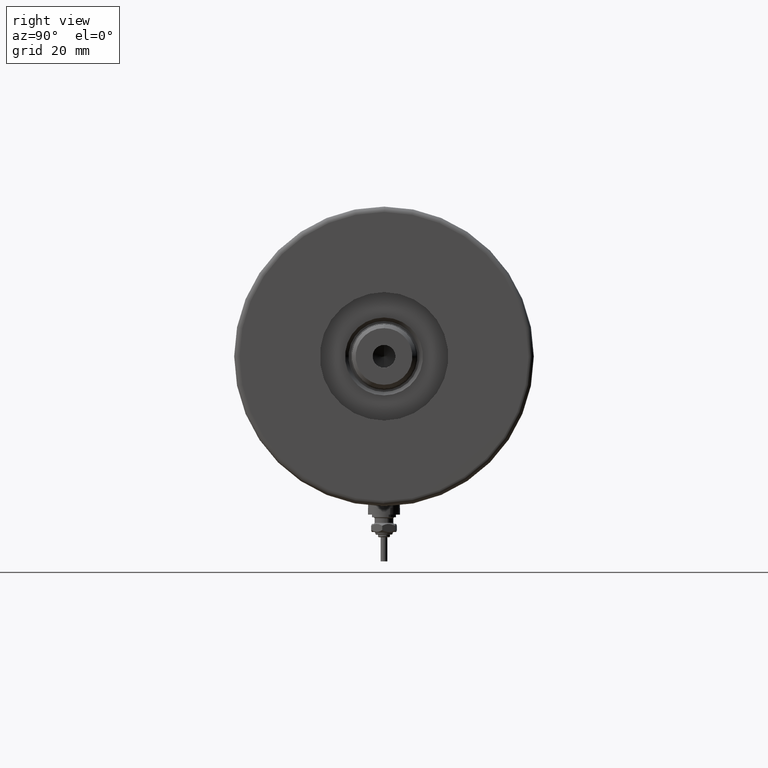
[diagram: clean part render]
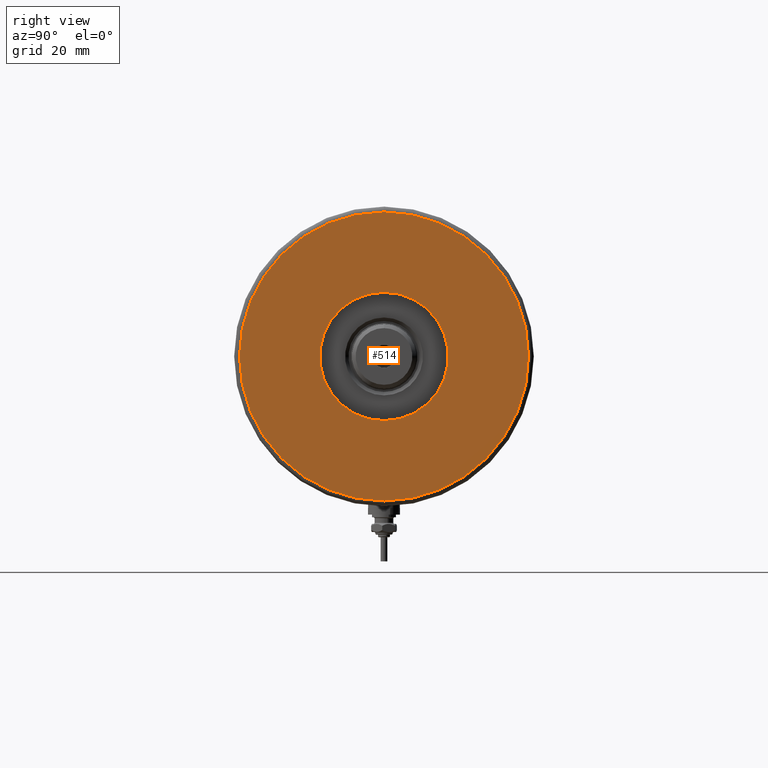
[diagram: same view with one face highlighted and labeled with its STEP entity id]
A machine part, right view. The second image highlights one B-rep face of the part: STEP entity #514.
In plain terms, the highlighted planar face has unit normal (1, 0, -0).
Its self-contained STEP definition (entity closure, byte-faithful):
#210 = DIRECTION ( 'NONE',  ( 1.000000000000000000, 0.000000000000000000, 0.000000000000000000 ) ) ;
#514 = ADVANCED_FACE ( 'NONE', ( #4796, #1959 ), #5839, .T. ) ;
#702 = CARTESIAN_POINT ( 'NONE',  ( 0.000000000000000000, 0.000000000000000000, 32.00000000000000000 ) ) ;
#878 = CARTESIAN_POINT ( 'NONE',  ( 24.00000000000000355, 0.000000000000000000, 32.00000000000000000 ) ) ;
#989 = ORIENTED_EDGE ( 'NONE', *, *, #6133, .F. ) ;
#1041 = CARTESIAN_POINT ( 'NONE',  ( 0.000000000000000000, 0.000000000000000000, 32.00000000000000000 ) ) ;
#1062 = VERTEX_POINT ( 'NONE', #5590 ) ;
#1075 = ORIENTED_EDGE ( 'NONE', *, *, #4115, .T. ) ;
#1265 = DIRECTION ( 'NONE',  ( 0.000000000000000000, 0.000000000000000000, 1.000000000000000000 ) ) ;
#1461 = EDGE_LOOP ( 'NONE', ( #5316, #1075 ) ) ;
#1482 = DIRECTION ( 'NONE',  ( 0.000000000000000000, 0.000000000000000000, 1.000000000000000000 ) ) ;
#1726 = AXIS2_PLACEMENT_3D ( 'NONE', #1752, #1265, #3202 ) ;
#1752 = CARTESIAN_POINT ( 'NONE',  ( 0.000000000000000000, 0.000000000000000000, 32.00000000000000000 ) ) ;
#1959 = FACE_BOUND ( 'NONE', #3378, .T. ) ;
#2111 = CIRCLE ( 'NONE', #1726, 54.00000000000000000 ) ;
#2192 = CIRCLE ( 'NONE', #4143, 54.00000000000000000 ) ;
#2421 = CARTESIAN_POINT ( 'NONE',  ( 0.000000000000000000, 0.000000000000000000, 32.00000000000000000 ) ) ;
#2539 = DIRECTION ( 'NONE',  ( 0.000000000000000000, 0.000000000000000000, 1.000000000000000000 ) ) ;
#2653 = DIRECTION ( 'NONE',  ( 1.000000000000000000, 0.000000000000000000, 0.000000000000000000 ) ) ;
#2670 = EDGE_CURVE ( 'NONE', #5204, #4134, #4446, .T. ) ;
#3191 = AXIS2_PLACEMENT_3D ( 'NONE', #1041, #1482, #5377 ) ;
#3202 = DIRECTION ( 'NONE',  ( 1.000000000000000000, 0.000000000000000000, 0.000000000000000000 ) ) ;
#3378 = EDGE_LOOP ( 'NONE', ( #4859, #989 ) ) ;
#3538 = DIRECTION ( 'NONE',  ( 0.000000000000000000, 0.000000000000000000, 1.000000000000000000 ) ) ;
#3581 = CARTESIAN_POINT ( 'NONE',  ( 0.000000000000000000, 0.000000000000000000, 32.00000000000000000 ) ) ;
#3624 = AXIS2_PLACEMENT_3D ( 'NONE', #2421, #6300, #210 ) ;
#4115 = EDGE_CURVE ( 'NONE', #4172, #1062, #2192, .T. ) ;
#4134 = VERTEX_POINT ( 'NONE', #5898 ) ;
#4143 = AXIS2_PLACEMENT_3D ( 'NONE', #702, #3538, #2653 ) ;
#4172 = VERTEX_POINT ( 'NONE', #5596 ) ;
#4446 = CIRCLE ( 'NONE', #3624, 24.00000000000000355 ) ;
#4796 = FACE_OUTER_BOUND ( 'NONE', #1461, .T. ) ;
#4859 = ORIENTED_EDGE ( 'NONE', *, *, #2670, .F. ) ;
#5204 = VERTEX_POINT ( 'NONE', #878 ) ;
#5316 = ORIENTED_EDGE ( 'NONE', *, *, #6194, .T. ) ;
#5377 = DIRECTION ( 'NONE',  ( 1.000000000000000000, 0.000000000000000000, -0.000000000000000000 ) ) ;
#5540 = DIRECTION ( 'NONE',  ( 1.000000000000000000, 0.000000000000000000, 0.000000000000000000 ) ) ;
#5589 = CIRCLE ( 'NONE', #5876, 24.00000000000000355 ) ;
#5590 = CARTESIAN_POINT ( 'NONE',  ( 54.00000000000000000, 0.000000000000000000, 32.00000000000000000 ) ) ;
#5596 = CARTESIAN_POINT ( 'NONE',  ( -54.00000000000000000, 6.735557395310443404E-15, 32.00000000000000000 ) ) ;
#5839 = PLANE ( 'NONE',  #3191 ) ;
#5876 = AXIS2_PLACEMENT_3D ( 'NONE', #3581, #2539, #5540 ) ;
#5898 = CARTESIAN_POINT ( 'NONE',  ( -24.00000000000000355, 2.939152317953648289E-15, 32.00000000000000000 ) ) ;
#6133 = EDGE_CURVE ( 'NONE', #4134, #5204, #5589, .T. ) ;
#6194 = EDGE_CURVE ( 'NONE', #1062, #4172, #2111, .T. ) ;
#6300 = DIRECTION ( 'NONE',  ( 0.000000000000000000, 0.000000000000000000, 1.000000000000000000 ) ) ;